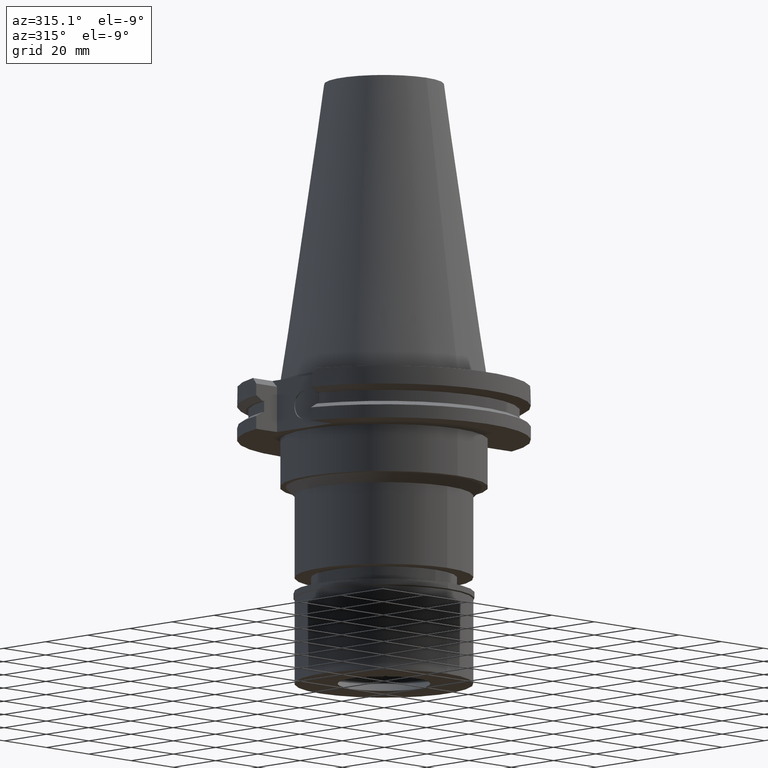
[diagram: clean part render]
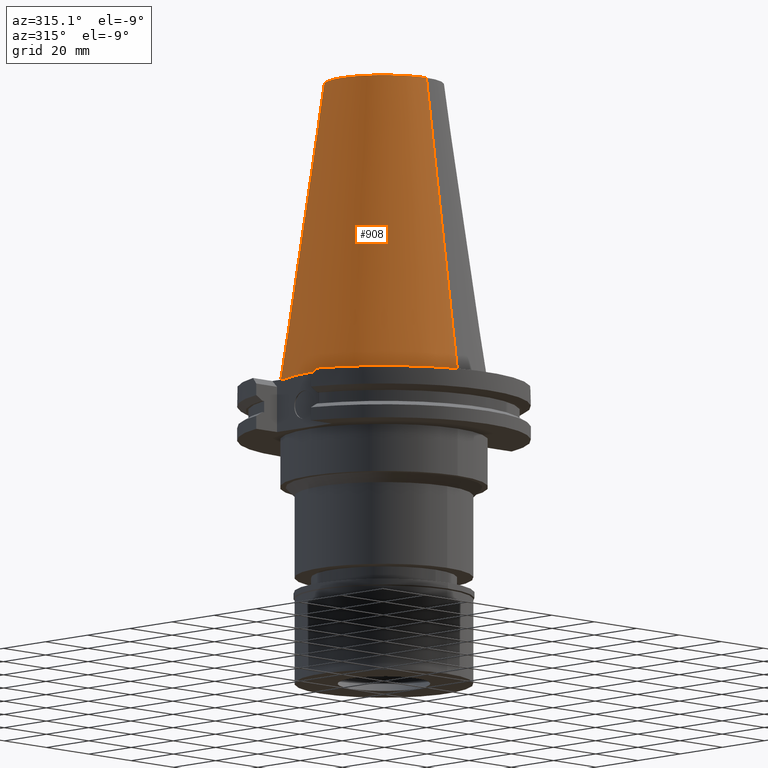
[diagram: same view with one face highlighted and labeled with its STEP entity id]
A machine part, auxiliary view. The second image highlights one B-rep face of the part: STEP entity #908.
In plain terms, the highlighted conical surface has half-angle 8.297 deg.
Its self-contained STEP definition (entity closure, byte-faithful):
#5 = CARTESIAN_POINT ( 'NONE',  ( 0.0000000000000000000, -34.92499999999999716, 4.334310688136999884E-13 ) ) ;
#10 = DIRECTION ( 'NONE',  ( 0.0000000000000000000, 0.0000000000000000000, -1.000000000000000000 ) ) ;
#151 = VERTEX_POINT ( 'NONE', #2927 ) ;
#409 = EDGE_CURVE ( 'NONE', #2490, #1865, #1568, .T. ) ;
#725 = CIRCLE ( 'NONE', #2834, 34.92499999999999716 ) ;
#785 = CARTESIAN_POINT ( 'NONE',  ( 0.0000000000000000000, 34.92499999999999716, 4.334310688136999884E-13 ) ) ;
#908 = ADVANCED_FACE ( 'NONE', ( #2381 ), #2095, .T. ) ;
#989 = LINE ( 'NONE', #2144, #2072 ) ;
#1118 = AXIS2_PLACEMENT_3D ( 'NONE', #1411, #2160, #2199 ) ;
#1366 = DIRECTION ( 'NONE',  ( 0.0000000000000000000, -0.1443069799456937474, -0.9895329683941577192 ) ) ;
#1411 = CARTESIAN_POINT ( 'NONE',  ( 0.0000000000000000000, 1.846767373113999857E-14, 50.79999999999999716 ) ) ;
#1431 = DIRECTION ( 'NONE',  ( 0.0000000000000000000, 0.1443069799456937474, -0.9895329683941577192 ) ) ;
#1536 = ORIENTED_EDGE ( 'NONE', *, *, #3113, .T. ) ;
#1568 = LINE ( 'NONE', #2838, #2369 ) ;
#1702 = ORIENTED_EDGE ( 'NONE', *, *, #409, .F. ) ;
#1865 = VERTEX_POINT ( 'NONE', #5 ) ;
#1868 = CIRCLE ( 'NONE', #2500, 20.10832422388000040 ) ;
#1890 = CARTESIAN_POINT ( 'NONE',  ( 0.0000000000000000000, 1.846767373113999857E-14, 7.389644451905000534E-13 ) ) ;
#2031 = EDGE_CURVE ( 'NONE', #1865, #2328, #725, .T. ) ;
#2072 = VECTOR ( 'NONE', #1431, 1000.000000000000114 ) ;
#2095 = CONICAL_SURFACE ( 'NONE', #1118, 27.51666211194000056, 0.1448125860318199565 ) ;
#2134 = DIRECTION ( 'NONE',  ( 0.0000000000000000000, 0.0000000000000000000, -1.000000000000000000 ) ) ;
#2144 = CARTESIAN_POINT ( 'NONE',  ( 0.0000000000000000000, 20.10832422387000307, 101.5999999999999943 ) ) ;
#2153 = ORIENTED_EDGE ( 'NONE', *, *, #2031, .F. ) ;
#2160 = DIRECTION ( 'NONE',  ( 0.0000000000000000000, 0.0000000000000000000, -1.000000000000000000 ) ) ;
#2181 = DIRECTION ( 'NONE',  ( 0.0000000000000000000, -1.000000000000000000, 0.0000000000000000000 ) ) ;
#2199 = DIRECTION ( 'NONE',  ( 0.0000000000000000000, -1.000000000000000000, 0.0000000000000000000 ) ) ;
#2328 = VERTEX_POINT ( 'NONE', #785 ) ;
#2369 = VECTOR ( 'NONE', #1366, 1000.000000000000114 ) ;
#2381 = FACE_OUTER_BOUND ( 'NONE', #2452, .T. ) ;
#2431 = CARTESIAN_POINT ( 'NONE',  ( 0.0000000000000000000, 1.846767373113999857E-14, 101.5999999999999943 ) ) ;
#2452 = EDGE_LOOP ( 'NONE', ( #2153, #1702, #3128, #1536 ) ) ;
#2490 = VERTEX_POINT ( 'NONE', #2588 ) ;
#2500 = AXIS2_PLACEMENT_3D ( 'NONE', #2431, #10, #2181 ) ;
#2588 = CARTESIAN_POINT ( 'NONE',  ( 0.0000000000000000000, -20.10832422388000040, 101.5999999999999943 ) ) ;
#2627 = EDGE_CURVE ( 'NONE', #2490, #151, #1868, .T. ) ;
#2834 = AXIS2_PLACEMENT_3D ( 'NONE', #1890, #2134, #3110 ) ;
#2838 = CARTESIAN_POINT ( 'NONE',  ( 0.0000000000000000000, -20.10832422387000307, 101.5999999999999943 ) ) ;
#2927 = CARTESIAN_POINT ( 'NONE',  ( 0.0000000000000000000, 20.10832422388000040, 101.5999999999999943 ) ) ;
#3110 = DIRECTION ( 'NONE',  ( 0.0000000000000000000, -1.000000000000000000, 0.0000000000000000000 ) ) ;
#3113 = EDGE_CURVE ( 'NONE', #151, #2328, #989, .T. ) ;
#3128 = ORIENTED_EDGE ( 'NONE', *, *, #2627, .T. ) ;